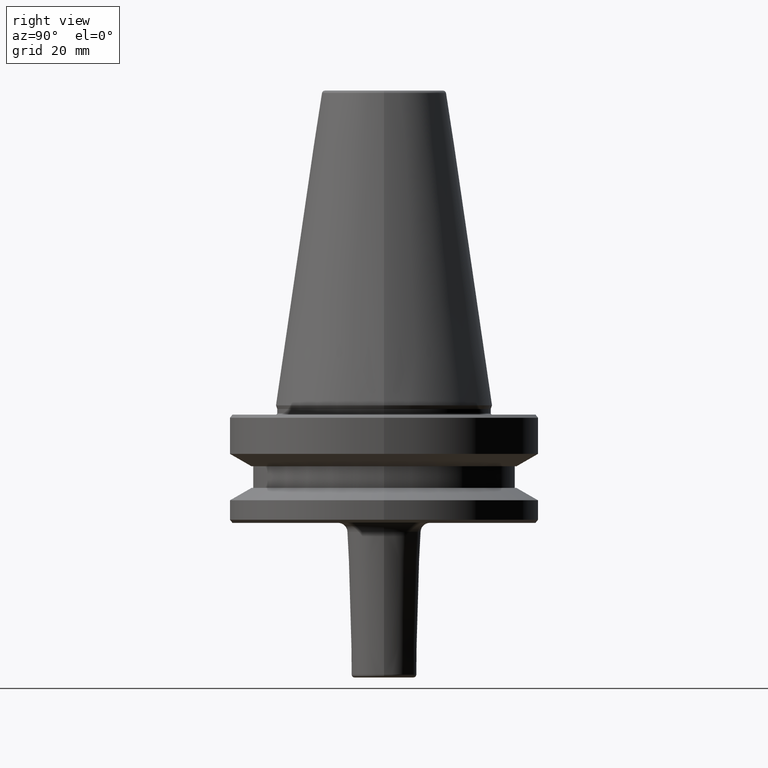
[diagram: clean part render]
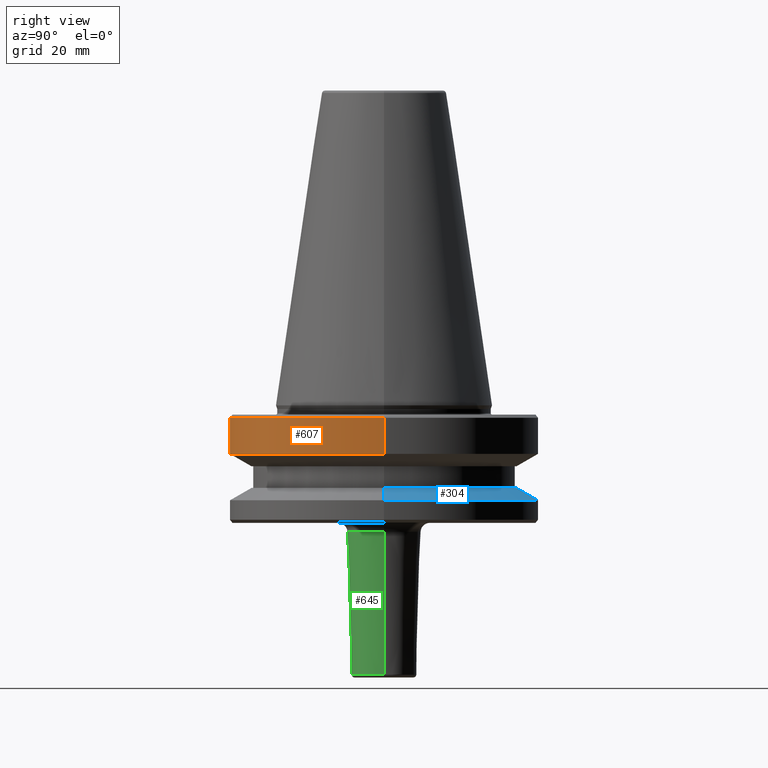
[diagram: same view with three faces highlighted in distinct colors, each labeled with its STEP entity id]
A machine part, right view with three faces highlighted in distinct colors.
Their STEP definitions:

[orange] entity #607 — the highlighted cylindrical surface (partial cylindrical patch) has radius 50 mm, axis along (-0, -0, 1).
#26 = CARTESIAN_POINT ( 'NONE',  ( -50.00000000000000000, 6.123233995736766100E-015, -3.999999999999989800 ) ) ;
#36 = EDGE_CURVE ( 'NONE', #342, #220, #732, .T. ) ;
#38 = VERTEX_POINT ( 'NONE', #215 ) ;
#75 = AXIS2_PLACEMENT_3D ( 'NONE', #861, #396, #928 ) ;
#125 = LINE ( 'NONE', #678, #351 ) ;
#144 = DIRECTION ( 'NONE',  ( -0.0000000000000000000, -0.0000000000000000000, 1.000000000000000000 ) ) ;
#215 = CARTESIAN_POINT ( 'NONE',  ( 50.00000000000000000, 0.0000000000000000000, -3.999999999999989800 ) ) ;
#220 = VERTEX_POINT ( 'NONE', #785 ) ;
#282 = DIRECTION ( 'NONE',  ( -0.0000000000000000000, -0.0000000000000000000, 1.000000000000000000 ) ) ;
#325 = VECTOR ( 'NONE', #448, 1000.000000000000000 ) ;
#334 = DIRECTION ( 'NONE',  ( 1.000000000000000000, 0.0000000000000000000, 0.0000000000000000000 ) ) ;
#342 = VERTEX_POINT ( 'NONE', #875 ) ;
#351 = VECTOR ( 'NONE', #282, 1000.000000000000000 ) ;
#383 = ORIENTED_EDGE ( 'NONE', *, *, #36, .T. ) ;
#396 = DIRECTION ( 'NONE',  ( -0.0000000000000000000, -0.0000000000000000000, 1.000000000000000000 ) ) ;
#442 = DIRECTION ( 'NONE',  ( -0.0000000000000000000, -0.0000000000000000000, 1.000000000000000000 ) ) ;
#448 = DIRECTION ( 'NONE',  ( -0.0000000000000000000, -0.0000000000000000000, 1.000000000000000000 ) ) ;
#475 = AXIS2_PLACEMENT_3D ( 'NONE', #824, #442, #828 ) ;
#478 = ORIENTED_EDGE ( 'NONE', *, *, #624, .T. ) ;
#541 = LINE ( 'NONE', #759, #325 ) ;
#555 = VERTEX_POINT ( 'NONE', #26 ) ;
#597 = CIRCLE ( 'NONE', #75, 50.00000000000000000 ) ;
#607 = ADVANCED_FACE ( 'NONE', ( #771 ), #934, .T. ) ;
#618 = EDGE_CURVE ( 'NONE', #342, #555, #125, .T. ) ;
#623 = ORIENTED_EDGE ( 'NONE', *, *, #618, .F. ) ;
#624 = EDGE_CURVE ( 'NONE', #220, #38, #541, .T. ) ;
#656 = CARTESIAN_POINT ( 'NONE',  ( 0.0000000000000000000, 0.0000000000000000000, -15.70022000322675400 ) ) ;
#678 = CARTESIAN_POINT ( 'NONE',  ( -50.00000000000000000, 6.123233995736766100E-015, 124.5046326327850600 ) ) ;
#732 = CIRCLE ( 'NONE', #988, 50.00000000000000000 ) ;
#737 = ORIENTED_EDGE ( 'NONE', *, *, #914, .F. ) ;
#759 = CARTESIAN_POINT ( 'NONE',  ( 50.00000000000000000, 0.0000000000000000000, 124.5046326327850600 ) ) ;
#771 = FACE_OUTER_BOUND ( 'NONE', #936, .T. ) ;
#785 = CARTESIAN_POINT ( 'NONE',  ( 50.00000000000000000, 0.0000000000000000000, -15.70022000322675400 ) ) ;
#824 = CARTESIAN_POINT ( 'NONE',  ( 0.0000000000000000000, 0.0000000000000000000, 124.5046326327850600 ) ) ;
#828 = DIRECTION ( 'NONE',  ( 1.000000000000000000, 0.0000000000000000000, 0.0000000000000000000 ) ) ;
#861 = CARTESIAN_POINT ( 'NONE',  ( 0.0000000000000000000, 0.0000000000000000000, -3.999999999999989800 ) ) ;
#875 = CARTESIAN_POINT ( 'NONE',  ( -50.00000000000000000, 6.123233995736766900E-015, -15.70022000322675400 ) ) ;
#914 = EDGE_CURVE ( 'NONE', #555, #38, #597, .T. ) ;
#928 = DIRECTION ( 'NONE',  ( 1.000000000000000000, 0.0000000000000000000, 0.0000000000000000000 ) ) ;
#934 = CYLINDRICAL_SURFACE ( 'NONE', #475, 50.00000000000000000 ) ;
#936 = EDGE_LOOP ( 'NONE', ( #623, #383, #478, #737 ) ) ;
#988 = AXIS2_PLACEMENT_3D ( 'NONE', #656, #144, #334 ) ;

[blue] entity #304 — the highlighted conical surface has half-angle 60 deg.
#31 = EDGE_LOOP ( 'NONE', ( #589, #633, #818, #452 ) ) ;
#63 = CARTESIAN_POINT ( 'NONE',  ( 50.00000000000000000, 6.123233995736766100E-015, -30.69977999677324500 ) ) ;
#103 = LINE ( 'NONE', #605, #723 ) ;
#109 = FACE_OUTER_BOUND ( 'NONE', #31, .T. ) ;
#112 = CARTESIAN_POINT ( 'NONE',  ( 50.00000000000000000, 0.0000000000000000000, -30.69977999677324500 ) ) ;
#126 = CARTESIAN_POINT ( 'NONE',  ( -50.00000000000000000, 6.123233995736766100E-015, -30.69977999677324500 ) ) ;
#176 = CARTESIAN_POINT ( 'NONE',  ( 0.0000000000000000000, 0.0000000000000000000, -30.69977999677324500 ) ) ;
#216 = CARTESIAN_POINT ( 'NONE',  ( 0.0000000000000000000, 0.0000000000000000000, -30.69977999677324500 ) ) ;
#223 = CARTESIAN_POINT ( 'NONE',  ( -43.07217782649105000, 0.0000000000000000000, -26.69999999999998900 ) ) ;
#290 = VERTEX_POINT ( 'NONE', #949 ) ;
#304 = ADVANCED_FACE ( 'NONE', ( #109 ), #446, .T. ) ;
#306 = EDGE_CURVE ( 'NONE', #290, #841, #775, .T. ) ;
#315 = EDGE_CURVE ( 'NONE', #613, #748, #548, .T. ) ;
#446 = CONICAL_SURFACE ( 'NONE', #998, 50.00000000000000000, 1.047197551196597200 ) ;
#452 = ORIENTED_EDGE ( 'NONE', *, *, #632, .F. ) ;
#503 = DIRECTION ( 'NONE',  ( 1.000000000000000000, 0.0000000000000000000, 0.0000000000000000000 ) ) ;
#510 = DIRECTION ( 'NONE',  ( -0.0000000000000000000, -0.0000000000000000000, 1.000000000000000000 ) ) ;
#548 = CIRCLE ( 'NONE', #821, 50.00000000000000000 ) ;
#553 = DIRECTION ( 'NONE',  ( -1.000000000000000000, 0.0000000000000000000, 0.0000000000000000000 ) ) ;
#558 = DIRECTION ( 'NONE',  ( 0.0000000000000000000, 0.0000000000000000000, -1.000000000000000000 ) ) ;
#589 = ORIENTED_EDGE ( 'NONE', *, *, #306, .F. ) ;
#601 = CARTESIAN_POINT ( 'NONE',  ( 0.0000000000000000000, 0.0000000000000000000, -26.69999999999998900 ) ) ;
#605 = CARTESIAN_POINT ( 'NONE',  ( -50.00000000000000000, 0.0000000000000000000, -30.69977999677324500 ) ) ;
#613 = VERTEX_POINT ( 'NONE', #112 ) ;
#632 = EDGE_CURVE ( 'NONE', #841, #748, #103, .T. ) ;
#633 = ORIENTED_EDGE ( 'NONE', *, *, #879, .T. ) ;
#683 = DIRECTION ( 'NONE',  ( -0.8660254037844383700, 0.0000000000000000000, -0.5000000000000004400 ) ) ;
#723 = VECTOR ( 'NONE', #683, 1000.000000000000000 ) ;
#748 = VERTEX_POINT ( 'NONE', #126 ) ;
#775 = CIRCLE ( 'NONE', #808, 43.07217782649105000 ) ;
#778 = VECTOR ( 'NONE', #854, 1000.000000000000000 ) ;
#808 = AXIS2_PLACEMENT_3D ( 'NONE', #601, #823, #858 ) ;
#818 = ORIENTED_EDGE ( 'NONE', *, *, #315, .T. ) ;
#821 = AXIS2_PLACEMENT_3D ( 'NONE', #216, #510, #503 ) ;
#823 = DIRECTION ( 'NONE',  ( -0.0000000000000000000, -0.0000000000000000000, 1.000000000000000000 ) ) ;
#841 = VERTEX_POINT ( 'NONE', #223 ) ;
#854 = DIRECTION ( 'NONE',  ( 0.8660254037844383700, 1.060575238724906500E-016, -0.5000000000000004400 ) ) ;
#858 = DIRECTION ( 'NONE',  ( 1.000000000000000000, 0.0000000000000000000, 0.0000000000000000000 ) ) ;
#879 = EDGE_CURVE ( 'NONE', #290, #613, #970, .T. ) ;
#949 = CARTESIAN_POINT ( 'NONE',  ( 43.07217782649105000, 5.699027233244276800E-015, -26.69999999999998900 ) ) ;
#970 = LINE ( 'NONE', #63, #778 ) ;
#998 = AXIS2_PLACEMENT_3D ( 'NONE', #176, #558, #553 ) ;

[green] entity #645 — the highlighted conical surface has half-angle 1.718 deg.
#24 = AXIS2_PLACEMENT_3D ( 'NONE', #832, #978, #117 ) ;
#117 = DIRECTION ( 'NONE',  ( 1.000000000000000000, 0.0000000000000000000, 0.0000000000000000000 ) ) ;
#118 = CARTESIAN_POINT ( 'NONE',  ( 10.52910040472687900, 0.0000000000000000000, -87.02998650910571100 ) ) ;
#127 = ORIENTED_EDGE ( 'NONE', *, *, #390, .T. ) ;
#148 = VERTEX_POINT ( 'NONE', #118 ) ;
#151 = CARTESIAN_POINT ( 'NONE',  ( 12.00000000000003900, 0.0000000000000000000, -38.00000000000000700 ) ) ;
#155 = EDGE_CURVE ( 'NONE', #644, #148, #370, .T. ) ;
#173 = ORIENTED_EDGE ( 'NONE', *, *, #975, .F. ) ;
#190 = DIRECTION ( 'NONE',  ( 1.000000000000000000, 0.0000000000000000000, 0.0000000000000000000 ) ) ;
#201 = CARTESIAN_POINT ( 'NONE',  ( -10.52910040472687900, 1.289442910854987100E-015, -87.02998650910571100 ) ) ;
#228 = DIRECTION ( 'NONE',  ( 0.0000000000000000000, 0.0000000000000000000, -1.000000000000000000 ) ) ;
#268 = VERTEX_POINT ( 'NONE', #794 ) ;
#273 = CONICAL_SURFACE ( 'NONE', #24, 12.00000000000003900, 0.02999100485687768500 ) ;
#288 = AXIS2_PLACEMENT_3D ( 'NONE', #702, #228, #784 ) ;
#311 = LINE ( 'NONE', #323, #526 ) ;
#317 = DIRECTION ( 'NONE',  ( 0.02998650910567078600, 0.0000000000000000000, 0.9995503035223667300 ) ) ;
#323 = CARTESIAN_POINT ( 'NONE',  ( -12.00000000000003900, 1.469576158976828500E-015, -38.00000000000000700 ) ) ;
#370 = CIRCLE ( 'NONE', #666, 10.52910040472687700 ) ;
#381 = CIRCLE ( 'NONE', #288, 11.91269878581954700 ) ;
#390 = EDGE_CURVE ( 'NONE', #148, #268, #415, .T. ) ;
#415 = LINE ( 'NONE', #151, #439 ) ;
#439 = VECTOR ( 'NONE', #317, 1000.000000000000100 ) ;
#458 = CARTESIAN_POINT ( 'NONE',  ( -11.91269878581954900, 1.458884843726047300E-015, -40.91004047268298600 ) ) ;
#505 = EDGE_LOOP ( 'NONE', ( #173, #600, #127, #578 ) ) ;
#512 = FACE_OUTER_BOUND ( 'NONE', #505, .T. ) ;
#526 = VECTOR ( 'NONE', #932, 1000.000000000000100 ) ;
#578 = ORIENTED_EDGE ( 'NONE', *, *, #843, .T. ) ;
#592 = CARTESIAN_POINT ( 'NONE',  ( 0.0000000000000000000, 0.0000000000000000000, -87.02998650910571100 ) ) ;
#600 = ORIENTED_EDGE ( 'NONE', *, *, #155, .T. ) ;
#644 = VERTEX_POINT ( 'NONE', #201 ) ;
#645 = ADVANCED_FACE ( 'NONE', ( #512 ), #273, .T. ) ;
#666 = AXIS2_PLACEMENT_3D ( 'NONE', #592, #966, #190 ) ;
#702 = CARTESIAN_POINT ( 'NONE',  ( 0.0000000000000000000, 0.0000000000000000000, -40.91004047268298600 ) ) ;
#784 = DIRECTION ( 'NONE',  ( -1.000000000000000000, 0.0000000000000000000, 0.0000000000000000000 ) ) ;
#786 = VERTEX_POINT ( 'NONE', #458 ) ;
#794 = CARTESIAN_POINT ( 'NONE',  ( 11.91269878581954900, 0.0000000000000000000, -40.91004047268298600 ) ) ;
#832 = CARTESIAN_POINT ( 'NONE',  ( 0.0000000000000000000, 0.0000000000000000000, -38.00000000000000700 ) ) ;
#843 = EDGE_CURVE ( 'NONE', #268, #786, #381, .T. ) ;
#932 = DIRECTION ( 'NONE',  ( -0.02998650910567078600, 3.672288239386268700E-018, 0.9995503035223667300 ) ) ;
#966 = DIRECTION ( 'NONE',  ( -0.0000000000000000000, -0.0000000000000000000, 1.000000000000000000 ) ) ;
#975 = EDGE_CURVE ( 'NONE', #644, #786, #311, .T. ) ;
#978 = DIRECTION ( 'NONE',  ( -0.0000000000000000000, -0.0000000000000000000, 1.000000000000000000 ) ) ;